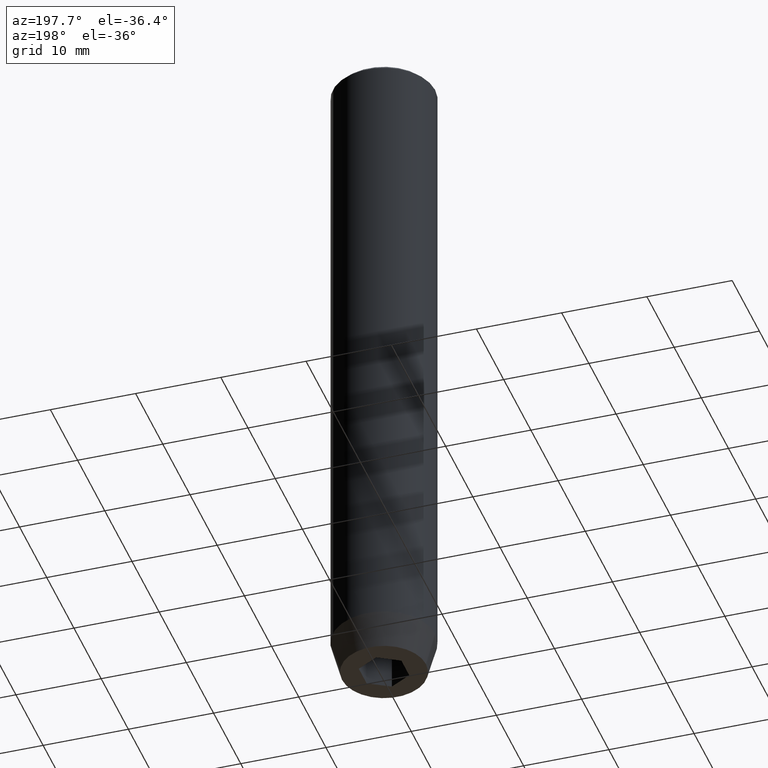
[diagram: clean part render]
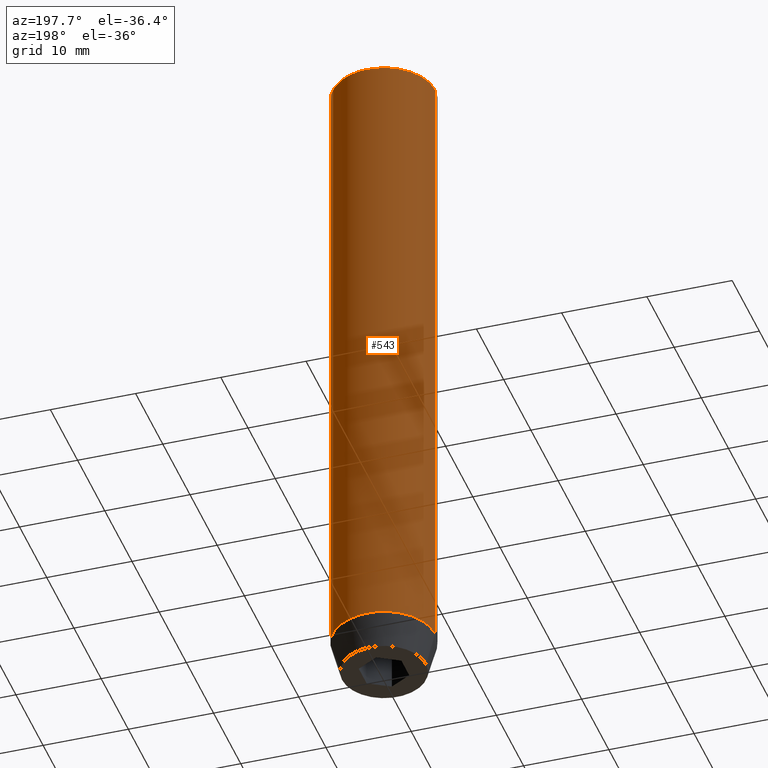
[diagram: same view with one face highlighted and labeled with its STEP entity id]
A machine part, auxiliary view. The second image highlights one B-rep face of the part: STEP entity #543.
In plain terms, the highlighted cylindrical surface (partial cylindrical patch) has radius 6 mm, axis along (-0, -0, 1).
Its self-contained STEP definition (entity closure, byte-faithful):
#11 = DIRECTION ( 'NONE',  ( 1.000000000000000000, 0.000000000000000000, 0.000000000000000000 ) ) ;
#25 = CARTESIAN_POINT ( 'NONE',  ( -6.000000000000000000, 7.347880794884119736E-16, -76.00000000000001421 ) ) ;
#43 = DIRECTION ( 'NONE',  ( -0.000000000000000000, -0.000000000000000000, 1.000000000000000000 ) ) ;
#56 = CARTESIAN_POINT ( 'NONE',  ( -6.000000000000000000, 7.347880794884119736E-16, -0.4999999999999891753 ) ) ;
#57 = VERTEX_POINT ( 'NONE', #25 ) ;
#61 = ORIENTED_EDGE ( 'NONE', *, *, #206, .T. ) ;
#66 = DIRECTION ( 'NONE',  ( -0.000000000000000000, -0.000000000000000000, 1.000000000000000000 ) ) ;
#119 = EDGE_LOOP ( 'NONE', ( #255, #61, #579, #412 ) ) ;
#184 = DIRECTION ( 'NONE',  ( 1.000000000000000000, 0.000000000000000000, 0.000000000000000000 ) ) ;
#198 = DIRECTION ( 'NONE',  ( -0.000000000000000000, -0.000000000000000000, 1.000000000000000000 ) ) ;
#206 = EDGE_CURVE ( 'NONE', #57, #456, #589, .T. ) ;
#210 = DIRECTION ( 'NONE',  ( 1.000000000000000000, 0.000000000000000000, 0.000000000000000000 ) ) ;
#226 = AXIS2_PLACEMENT_3D ( 'NONE', #494, #43, #210 ) ;
#250 = EDGE_CURVE ( 'NONE', #456, #278, #336, .T. ) ;
#251 = DIRECTION ( 'NONE',  ( -0.000000000000000000, -0.000000000000000000, 1.000000000000000000 ) ) ;
#255 = ORIENTED_EDGE ( 'NONE', *, *, #293, .T. ) ;
#270 = CIRCLE ( 'NONE', #637, 6.000000000000000000 ) ;
#278 = VERTEX_POINT ( 'NONE', #409 ) ;
#293 = EDGE_CURVE ( 'NONE', #564, #57, #270, .T. ) ;
#326 = VECTOR ( 'NONE', #66, 1000.000000000000000 ) ;
#336 = CIRCLE ( 'NONE', #539, 6.000000000000000000 ) ;
#349 = CARTESIAN_POINT ( 'NONE',  ( 0.000000000000000000, 0.000000000000000000, -76.00000000000001421 ) ) ;
#386 = CARTESIAN_POINT ( 'NONE',  ( 0.000000000000000000, 0.000000000000000000, -0.4999999999999891753 ) ) ;
#397 = FACE_OUTER_BOUND ( 'NONE', #119, .T. ) ;
#409 = CARTESIAN_POINT ( 'NONE',  ( 6.000000000000000000, 0.000000000000000000, -0.4999999999999891753 ) ) ;
#412 = ORIENTED_EDGE ( 'NONE', *, *, #607, .F. ) ;
#416 = LINE ( 'NONE', #457, #326 ) ;
#456 = VERTEX_POINT ( 'NONE', #56 ) ;
#457 = CARTESIAN_POINT ( 'NONE',  ( 6.000000000000000000, 0.000000000000000000, 0.000000000000000000 ) ) ;
#483 = DIRECTION ( 'NONE',  ( 0.000000000000000000, 0.000000000000000000, -1.000000000000000000 ) ) ;
#494 = CARTESIAN_POINT ( 'NONE',  ( 0.000000000000000000, 0.000000000000000000, 0.000000000000000000 ) ) ;
#539 = AXIS2_PLACEMENT_3D ( 'NONE', #386, #483, #184 ) ;
#543 = ADVANCED_FACE ( 'NONE', ( #397 ), #599, .T. ) ;
#550 = VECTOR ( 'NONE', #198, 1000.000000000000000 ) ;
#562 = CARTESIAN_POINT ( 'NONE',  ( 6.000000000000000000, 0.000000000000000000, -76.00000000000001421 ) ) ;
#564 = VERTEX_POINT ( 'NONE', #562 ) ;
#579 = ORIENTED_EDGE ( 'NONE', *, *, #250, .T. ) ;
#589 = LINE ( 'NONE', #639, #550 ) ;
#599 = CYLINDRICAL_SURFACE ( 'NONE', #226, 6.000000000000000000 ) ;
#607 = EDGE_CURVE ( 'NONE', #564, #278, #416, .T. ) ;
#637 = AXIS2_PLACEMENT_3D ( 'NONE', #349, #251, #11 ) ;
#639 = CARTESIAN_POINT ( 'NONE',  ( -6.000000000000000000, 7.347880794884119736E-16, 0.000000000000000000 ) ) ;